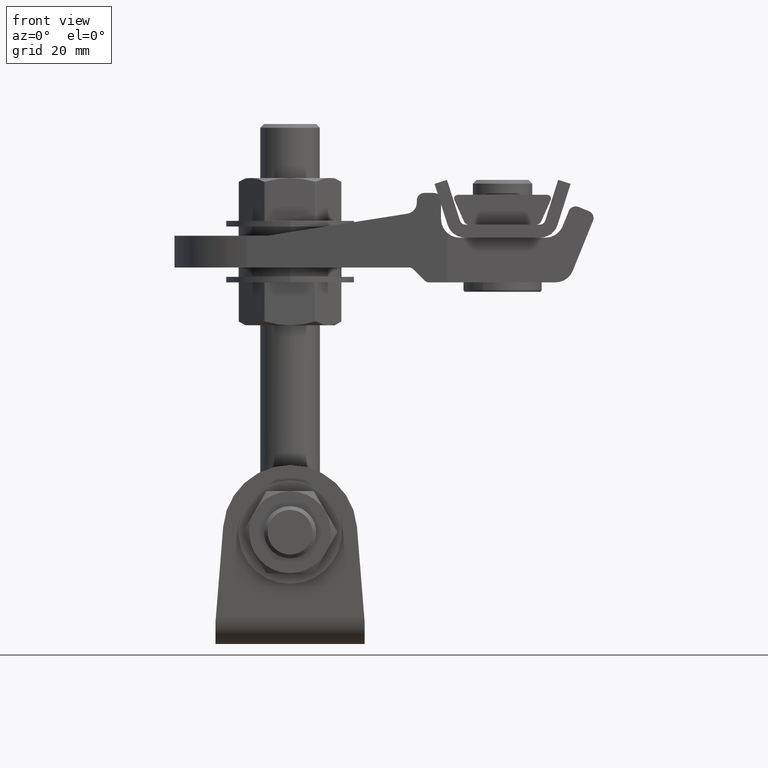
[diagram: clean part render]
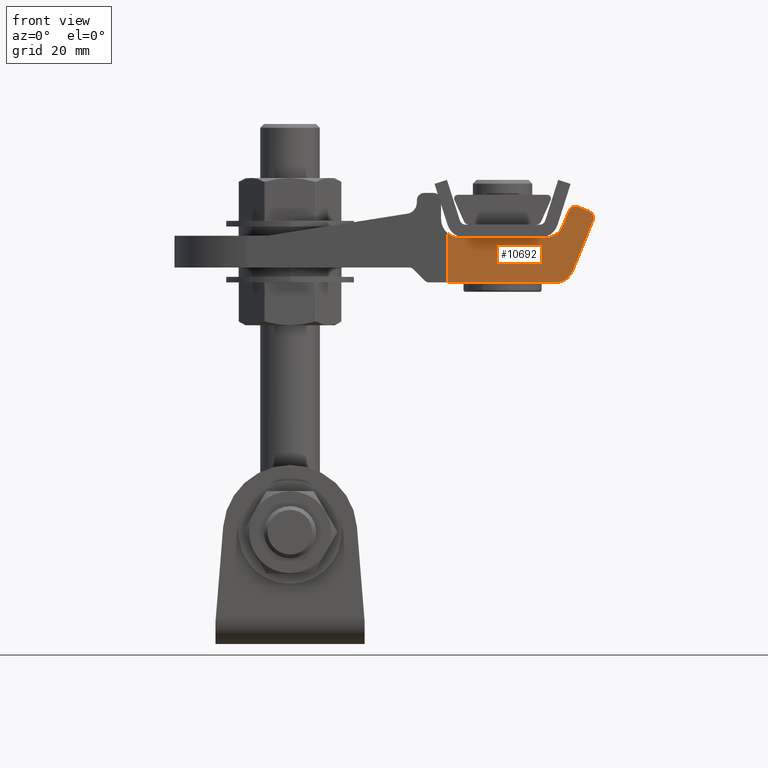
[diagram: same view with one face highlighted and labeled with its STEP entity id]
A machine part, front view. The second image highlights one B-rep face of the part: STEP entity #10692.
In plain terms, the highlighted planar face has unit normal (-0, 1, -0).
Its self-contained STEP definition (entity closure, byte-faithful):
#295 = CARTESIAN_POINT ( 'NONE',  ( -54.64579862392428566, -30.00000000000000000, -8.625938139763494661 ) ) ;
#409 = DIRECTION ( 'NONE',  ( 0.000000000000000000, -0.000000000000000000, 1.000000000000000000 ) ) ;
#452 = EDGE_LOOP ( 'NONE', ( #1785, #759, #20782, #18520, #7493, #13531, #2654, #10655, #19356, #17614, #18858 ) ) ;
#574 = DIRECTION ( 'NONE',  ( -1.000000000000000000, -0.000000000000000000, -0.000000000000000000 ) ) ;
#652 = VERTEX_POINT ( 'NONE', #10738 ) ;
#759 = ORIENTED_EDGE ( 'NONE', *, *, #18187, .T. ) ;
#784 = CARTESIAN_POINT ( 'NONE',  ( -16.72082399926730645, -30.00000000000000355, -2.725479532944791838 ) ) ;
#835 = VERTEX_POINT ( 'NONE', #1463 ) ;
#967 = EDGE_CURVE ( 'NONE', #7131, #3878, #19855, .T. ) ;
#1463 = CARTESIAN_POINT ( 'NONE',  ( -45.69900731141533612, -30.00000000000000000, 10.50000000000000178 ) ) ;
#1554 = AXIS2_PLACEMENT_3D ( 'NONE', #11469, #13436, #13495 ) ;
#1567 = DIRECTION ( 'NONE',  ( 0.000000000000000000, 1.000000000000000000, -0.000000000000000000 ) ) ;
#1742 = CARTESIAN_POINT ( 'NONE',  ( -51.86449655981069640, -30.00000000000000000, -9.750375255905398220 ) ) ;
#1753 = EDGE_CURVE ( 'NONE', #10503, #18621, #10290, .T. ) ;
#1783 = AXIS2_PLACEMENT_3D ( 'NONE', #9100, #7613, #20351 ) ;
#1785 = ORIENTED_EDGE ( 'NONE', *, *, #9337, .F. ) ;
#1810 = VERTEX_POINT ( 'NONE', #784 ) ;
#2177 = CARTESIAN_POINT ( 'NONE',  ( -56.50000000000000000, -30.00000000000000000, -7.876313395668892881 ) ) ;
#2654 = ORIENTED_EDGE ( 'NONE', *, *, #1753, .F. ) ;
#3019 = VECTOR ( 'NONE', #17488, 1000.000000000000000 ) ;
#3052 = CARTESIAN_POINT ( 'NONE',  ( -19.99999999999998934, -30.00000000000000000, -6.499999999999999112 ) ) ;
#3476 = CARTESIAN_POINT ( 'NONE',  ( -47.63550344018930360, -30.00000000000000000, -4.625938139763490220 ) ) ;
#3510 = CARTESIAN_POINT ( 'NONE',  ( -50.33451075160463972, -30.00000000000000000, 7.374061860236509780 ) ) ;
#3679 = DIRECTION ( 'NONE',  ( -0.000000000000000000, -1.000000000000000000, -0.000000000000000000 ) ) ;
#3878 = VERTEX_POINT ( 'NONE', #14562 ) ;
#4006 = VECTOR ( 'NONE', #18503, 1000.000000000000000 ) ;
#4940 = DIRECTION ( 'NONE',  ( 0.000000000000000000, 1.000000000000000000, 0.000000000000000000 ) ) ;
#5089 = CARTESIAN_POINT ( 'NONE',  ( -50.01029518373496785, -30.00000000000000000, -10.50000000000000000 ) ) ;
#5234 = VERTEX_POINT ( 'NONE', #3476 ) ;
#5238 = DIRECTION ( 'NONE',  ( -3.469446951953614189E-15, 0.000000000000000000, 1.000000000000000000 ) ) ;
#5900 = AXIS2_PLACEMENT_3D ( 'NONE', #13085, #1567, #6907 ) ;
#6024 = CIRCLE ( 'NONE', #1783, 5.000000000000004441 ) ;
#6561 = VERTEX_POINT ( 'NONE', #295 ) ;
#6907 = DIRECTION ( 'NONE',  ( 0.000000000000000000, 0.000000000000000000, -1.000000000000000000 ) ) ;
#6944 = CIRCLE ( 'NONE', #5900, 5.000000000000002665 ) ;
#6982 = DIRECTION ( 'NONE',  ( 0.000000000000000000, -0.000000000000000000, 1.000000000000000000 ) ) ;
#7131 = VERTEX_POINT ( 'NONE', #1742 ) ;
#7493 = ORIENTED_EDGE ( 'NONE', *, *, #15129, .F. ) ;
#7606 = AXIS2_PLACEMENT_3D ( 'NONE', #3052, #14167, #14240 ) ;
#7613 = DIRECTION ( 'NONE',  ( -0.000000000000000000, -1.000000000000000000, -0.000000000000000000 ) ) ;
#7781 = FACE_OUTER_BOUND ( 'NONE', #452, .T. ) ;
#8466 = VECTOR ( 'NONE', #14848, 999.9999999999998863 ) ;
#9100 = CARTESIAN_POINT ( 'NONE',  ( -42.99999999999999289, -30.00000000000000000, -6.499999999999999112 ) ) ;
#9250 = DIRECTION ( 'NONE',  ( 0.3748123720473014453, -0.000000000000000000, 0.9271006880378610537 ) ) ;
#9337 = EDGE_CURVE ( 'NONE', #15814, #13512, #12894, .T. ) ;
#9372 = VECTOR ( 'NONE', #9250, 1000.000000000000114 ) ;
#9450 = CARTESIAN_POINT ( 'NONE',  ( -19.99999999999998934, -30.00000000000000000, -1.499999999999998890 ) ) ;
#9742 = LINE ( 'NONE', #5089, #8466 ) ;
#10012 = CARTESIAN_POINT ( 'NONE',  ( -16.72082399926728158, -30.00000000000000000, -6.499999999999999112 ) ) ;
#10094 = CARTESIAN_POINT ( 'NONE',  ( -42.99999999999999289, -30.00000000000000000, -6.499999999999999112 ) ) ;
#10290 = LINE ( 'NONE', #14943, #10532 ) ;
#10314 = LINE ( 'NONE', #2177, #4006 ) ;
#10503 = VERTEX_POINT ( 'NONE', #9450 ) ;
#10532 = VECTOR ( 'NONE', #574, 1000.000000000000000 ) ;
#10655 = ORIENTED_EDGE ( 'NONE', *, *, #12086, .F. ) ;
#10692 = ADVANCED_FACE ( 'NONE', ( #7781 ), #19698, .F. ) ;
#10738 = CARTESIAN_POINT ( 'NONE',  ( -16.72082399926730645, -30.00000000000000355, 10.50000000000000178 ) ) ;
#11189 = CARTESIAN_POINT ( 'NONE',  ( -55.75037525590539644, -30.00000000000000000, -6.022112019593169663 ) ) ;
#11469 = CARTESIAN_POINT ( 'NONE',  ( -53.89617387982968211, -30.00000000000000000, -6.771736763687772331 ) ) ;
#11585 = EDGE_CURVE ( 'NONE', #835, #652, #15856, .T. ) ;
#12086 = EDGE_CURVE ( 'NONE', #1810, #10503, #16340, .T. ) ;
#12455 = EDGE_CURVE ( 'NONE', #7131, #6561, #10314, .T. ) ;
#12553 = EDGE_CURVE ( 'NONE', #18621, #5234, #6024, .T. ) ;
#12709 = CIRCLE ( 'NONE', #1554, 2.000000000000000000 ) ;
#12894 = LINE ( 'NONE', #17106, #9372 ) ;
#13085 = CARTESIAN_POINT ( 'NONE',  ( -45.69900731141532901, -30.00000000000000000, 5.500000000000000888 ) ) ;
#13436 = DIRECTION ( 'NONE',  ( -0.000000000000000000, -1.000000000000000000, -0.000000000000000000 ) ) ;
#13495 = DIRECTION ( 'NONE',  ( 0.000000000000000000, 0.000000000000000000, 1.000000000000000000 ) ) ;
#13512 = VERTEX_POINT ( 'NONE', #3510 ) ;
#13528 = AXIS2_PLACEMENT_3D ( 'NONE', #10094, #4940, #409 ) ;
#13531 = ORIENTED_EDGE ( 'NONE', *, *, #12553, .F. ) ;
#13804 = AXIS2_PLACEMENT_3D ( 'NONE', #19706, #3679, #5238 ) ;
#14167 = DIRECTION ( 'NONE',  ( -0.000000000000000000, -1.000000000000000000, -0.000000000000000000 ) ) ;
#14240 = DIRECTION ( 'NONE',  ( 0.000000000000000000, 0.000000000000000000, 1.000000000000000000 ) ) ;
#14352 = CARTESIAN_POINT ( 'NONE',  ( -42.99999999999999289, -30.00000000000000000, -1.499999999999994449 ) ) ;
#14562 = CARTESIAN_POINT ( 'NONE',  ( -49.26067043964036429, -30.00000000000000000, -8.645798623924273230 ) ) ;
#14848 = DIRECTION ( 'NONE',  ( -0.3748123720472993914, -0.000000000000000000, -0.9271006880378619419 ) ) ;
#14943 = CARTESIAN_POINT ( 'NONE',  ( -42.99999999999999289, -30.00000000000000000, -1.499999999999998890 ) ) ;
#15129 = EDGE_CURVE ( 'NONE', #5234, #3878, #9742, .T. ) ;
#15198 = LINE ( 'NONE', #10012, #15456 ) ;
#15456 = VECTOR ( 'NONE', #6982, 1000.000000000000000 ) ;
#15814 = VERTEX_POINT ( 'NONE', #11189 ) ;
#15856 = LINE ( 'NONE', #15871, #3019 ) ;
#15871 = CARTESIAN_POINT ( 'NONE',  ( -11.74264068711926257, -30.00000000000000000, 10.50000000000000000 ) ) ;
#15875 = EDGE_CURVE ( 'NONE', #13512, #835, #6944, .T. ) ;
#16340 = CIRCLE ( 'NONE', #7606, 5.000000000000000888 ) ;
#17106 = CARTESIAN_POINT ( 'NONE',  ( -50.33451075160463972, -30.00000000000000000, 7.374061860236507115 ) ) ;
#17488 = DIRECTION ( 'NONE',  ( 1.000000000000000000, -0.000000000000000000, -5.108684021380536914E-17 ) ) ;
#17614 = ORIENTED_EDGE ( 'NONE', *, *, #11585, .F. ) ;
#18187 = EDGE_CURVE ( 'NONE', #15814, #6561, #12709, .T. ) ;
#18503 = DIRECTION ( 'NONE',  ( -0.9271006880378612758, -0.000000000000000000, 0.3748123720473008347 ) ) ;
#18520 = ORIENTED_EDGE ( 'NONE', *, *, #967, .T. ) ;
#18621 = VERTEX_POINT ( 'NONE', #14352 ) ;
#18858 = ORIENTED_EDGE ( 'NONE', *, *, #15875, .F. ) ;
#18863 = EDGE_CURVE ( 'NONE', #1810, #652, #15198, .T. ) ;
#19356 = ORIENTED_EDGE ( 'NONE', *, *, #18863, .T. ) ;
#19698 = PLANE ( 'NONE',  #13528 ) ;
#19706 = CARTESIAN_POINT ( 'NONE',  ( -51.11487181571609284, -30.00000000000000000, -7.896173879829674114 ) ) ;
#19855 = CIRCLE ( 'NONE', #13804, 2.000000000000000000 ) ;
#20351 = DIRECTION ( 'NONE',  ( 0.000000000000000000, 0.000000000000000000, 1.000000000000000000 ) ) ;
#20782 = ORIENTED_EDGE ( 'NONE', *, *, #12455, .F. ) ;